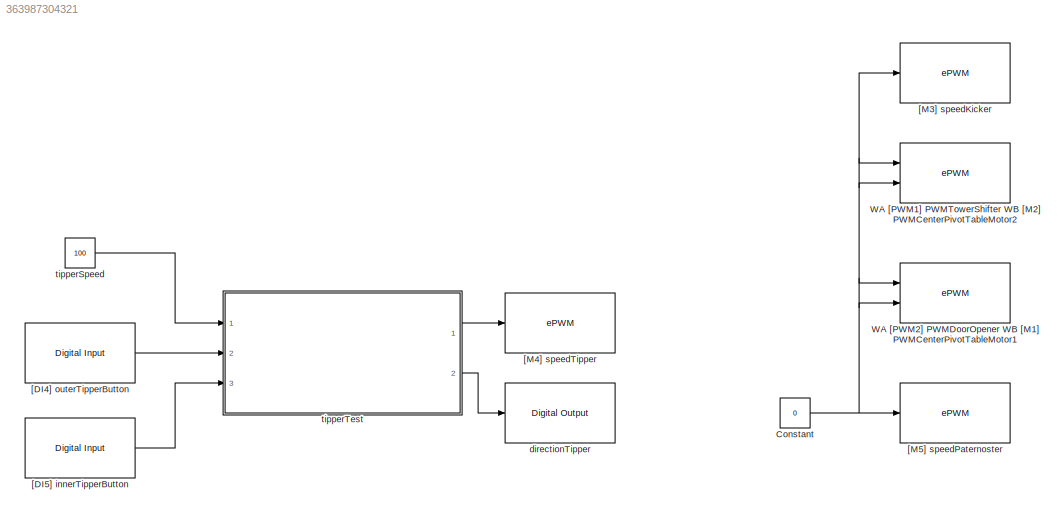
MODEL slx_363987304321
KIND model
BLOCK [Constant] Constant
  OutDataTypeStr = uint16
  Value = 0
BLOCK [Reference] WA [PWM1] PWMTowerShifter WB [M2] PWMCenterPivotTableMotor2  REF=c280xlib/ePWM
  CMPASource = Input port
  CMPAUnits = Percentages
  CMPAValue_clk = 32000
  CMPAValue_per = 0
  CMPBSource = Input port
  CMPBUnits = Percentages
  CMPBValue_clk = 32000
  CMPBValue_per = 0
  DBSource_ePWMxA = ePWMxA
  DBSource_ePWMxB = ePWMxA
  DBedgeDelay = Positive
  DBperiodSource = Specify via dialog
  DBpolarity = Active high (AH)
  FEDperiod = 0
  HRPWM_CTLMode = Phase control mode
  HRPWM_EDGMode = Both edge
  HRPWM_LoadMode = Counter equals to zero (CTR=ZERO)
  HSclockPrescale = 1
  Ports = [2]
  REDperiod = 0
  SourceBlock = c280xlib/ePWM
  SourceType = C280x/C2833x ePWM
  adcrequestEventA = First event
  adcrequestEventB = First event
  adcstartEventA = Counter equals to zero (CTR=Zero)
  adcstartEventB = Counter equals to zero (CTR=Zero)
  adcstartModuleA = off
  adcstartModuleB = off
  checkMode = off
  chopperDuty = 12.5%
  chopperEnable = off
  chopperFirstwidth = 1
  chopperFrequency = 1
  clockPrescale = 1
  countingMode = Up
  ePWMxACSFenable = off
  ePWMxACSFvalue = Forcing disable
  ePWMxALoadMode = Load on counter equals to zero (CTR=Zero)
  ePWMxASFreload = Zero
  ePWMxAStatus = on
  ePWMxAValue = 0
  ePWMxAactionLogic1 = Do nothing
  ePWMxAactionLogic2 = Set
  ePWMxAactionLogic3 = Do nothing
  ePWMxAactionLogic4 = Do nothing
  ePWMxAactionLogic5 = Clear
  ePWMxAactionLogic6 = Do nothing
  ePWMxAforced = No action
  ePWMxBCSFenable = off
  ePWMxBCSFvalue = Forcing disable
  ePWMxBLoadMode = Load on counter equals to zero (CTR=Zero)
  ePWMxBSFreload = Zero
  ePWMxBStatus = on
  ePWMxBValue = 0
  ePWMxBactionLogic1 = Do nothing
  ePWMxBactionLogic2 = Set
  ePWMxBactionLogic3 = Do nothing
  ePWMxBactionLogic4 = Do nothing
  ePWMxBactionLogic5 = Clear
  ePWMxBactionLogic6 = Do nothing
  ePWMxBforced = No action
  enCMPAshadow = Counter equals to zero
  enCMPBshadow = Counter equals to zero
  enHRPWM = off
  enSFO = on
  enTzCbcIntr = off
  enTzOstIntr = off
  enableDBePWMxA = off
  enableDBePWMxB = off
  intEn = off
  intPrd = First event
  intSel = Counter equals to zero (CTR=Zero)
  periodUnits = Clock cycles
  phaseActive = 0
  phaseActiveEnable = Disable
  phaseDirection = Count down after sync
  synchronizationEnable = off
  synchronizationOption = Disable
  tbshadow = Counter equals to zero
  timerPeriod = -1
  timerPeriod_clk = 64000
  timerPeriod_sec = 0.0001
  timerSource = Specify via dialog
  tripZoneoption = One-shot trip (OSHT)
  tripZonesource = Specify via dialog
  tzselCBC1 = off
  tzselCBC2 = off
  tzselCBC3 = off
  tzselCBC4 = off
  tzselCBC5 = off
  tzselCBC6 = off
  tzselOSHT1 = off
  tzselOSHT2 = off
  tzselOSHT3 = off
  tzselOSHT4 = off
  tzselOSHT5 = off
  tzselOSHT6 = off
  useModule = ePWM1
BLOCK [Reference] WA [PWM2] PWMDoorOpener WB [M1] PWMCenterPivotTableMotor1  REF=c280xlib/ePWM
  CMPASource = Input port
  CMPAUnits = Percentages
  CMPAValue_clk = 32000
  CMPAValue_per = 0
  CMPBSource = Input port
  CMPBUnits = Percentages
  CMPBValue_clk = 32000
  CMPBValue_per = 0
  DBSource_ePWMxA = ePWMxA
  DBSource_ePWMxB = ePWMxA
  DBedgeDelay = Positive
  DBperiodSource = Specify via dialog
  DBpolarity = Active high (AH)
  FEDperiod = 0
  HRPWM_CTLMode = Phase control mode
  HRPWM_EDGMode = Both edge
  HRPWM_LoadMode = Counter equals to zero (CTR=ZERO)
  HSclockPrescale = 1
  Ports = [2]
  REDperiod = 0
  SourceBlock = c280xlib/ePWM
  SourceType = C280x/C2833x ePWM
  adcrequestEventA = First event
  adcrequestEventB = First event
  adcstartEventA = Counter equals to zero (CTR=Zero)
  adcstartEventB = Counter equals to zero (CTR=Zero)
  adcstartModuleA = off
  adcstartModuleB = off
  checkMode = off
  chopperDuty = 12.5%
  chopperEnable = off
  chopperFirstwidth = 1
  chopperFrequency = 1
  clockPrescale = 1
  countingMode = Up
  ePWMxACSFenable = off
  ePWMxACSFvalue = Forcing disable
  ePWMxALoadMode = Load on counter equals to zero (CTR=Zero)
  ePWMxASFreload = Zero
  ePWMxAStatus = on
  ePWMxAValue = 0
  ePWMxAactionLogic1 = Do nothing
  ePWMxAactionLogic2 = Set
  ePWMxAactionLogic3 = Do nothing
  ePWMxAactionLogic4 = Do nothing
  ePWMxAactionLogic5 = Clear
  ePWMxAactionLogic6 = Do nothing
  ePWMxAforced = No action
  ePWMxBCSFenable = off
  ePWMxBCSFvalue = Forcing disable
  ePWMxBLoadMode = Load on counter equals to zero (CTR=Zero)
  ePWMxBSFreload = Zero
  ePWMxBStatus = on
  ePWMxBValue = 0
  ePWMxBactionLogic1 = Do nothing
  ePWMxBactionLogic2 = Set
  ePWMxBactionLogic3 = Do nothing
  ePWMxBactionLogic4 = Do nothing
  ePWMxBactionLogic5 = Clear
  ePWMxBactionLogic6 = Do nothing
  ePWMxBforced = No action
  enCMPAshadow = Counter equals to zero
  enCMPBshadow = Counter equals to zero
  enHRPWM = off
  enSFO = on
  enTzCbcIntr = off
  enTzOstIntr = off
  enableDBePWMxA = off
  enableDBePWMxB = off
  intEn = off
  intPrd = First event
  intSel = Counter equals to zero (CTR=Zero)
  periodUnits = Clock cycles
  phaseActive = 0
  phaseActiveEnable = Disable
  phaseDirection = Count down after sync
  synchronizationEnable = off
  synchronizationOption = Disable
  tbshadow = Counter equals to zero
  timerPeriod = -1
  timerPeriod_clk = 64000
  timerPeriod_sec = 0.0001
  timerSource = Specify via dialog
  tripZoneoption = One-shot trip (OSHT)
  tripZonesource = Specify via dialog
  tzselCBC1 = off
  tzselCBC2 = off
  tzselCBC3 = off
  tzselCBC4 = off
  tzselCBC5 = off
  tzselCBC6 = off
  tzselOSHT1 = off
  tzselOSHT2 = off
  tzselOSHT3 = off
  tzselOSHT4 = off
  tzselOSHT5 = off
  tzselOSHT6 = off
  useModule = ePWM2
BLOCK [Reference] [DI4] outerTipperButton  REF=c2833xlib/Digital Input
  GPIO_Bit0 = off
  GPIO_Bit0_Qualification = Sync to SYSCLKOUT
  GPIO_Bit1 = off
  GPIO_Bit1_Qualification = Sync to SYSCLKOUT
  GPIO_Bit2 = off
  GPIO_Bit2_Qualification = Sync to SYSCLKOUT
  GPIO_Bit3 = off
  GPIO_Bit3_Qualification = Sync to SYSCLKOUT
  GPIO_Bit4 = off
  GPIO_Bit4_Qualification = Sync to SYSCLKOUT
  GPIO_Bit5 = off
  GPIO_Bit5_Qualification = Sync to SYSCLKOUT
  GPIO_Bit6 = on
  GPIO_Bit6_Qualification = Sync to SYSCLKOUT
  GPIO_Bit7 = off
  GPIO_Bit7_Qualification = Sync to SYSCLKOUT
  GPIO_Number = GPIO24~GPIO31
  Ports = [0, 1]
  Qualification_Period = -1
  SourceBlock = c2833xlib/Digital Input
  SourceType = C2833x GPIO Digital Input
  UserDataPersistent = on
  dataType = boolean
  sampleTime = 0.001
BLOCK [Reference] [DI5] innerTipperButton  REF=c2833xlib/Digital Input
  GPIO_Bit0 = off
  GPIO_Bit0_Qualification = Sync to SYSCLKOUT
  GPIO_Bit1 = off
  GPIO_Bit1_Qualification = Sync to SYSCLKOUT
  GPIO_Bit2 = off
  GPIO_Bit2_Qualification = Sync to SYSCLKOUT
  GPIO_Bit3 = off
  GPIO_Bit3_Qualification = Sync to SYSCLKOUT
  GPIO_Bit4 = off
  GPIO_Bit4_Qualification = Sync to SYSCLKOUT
  GPIO_Bit5 = off
  GPIO_Bit5_Qualification = Sync to SYSCLKOUT
  GPIO_Bit6 = off
  GPIO_Bit6_Qualification = Sync to SYSCLKOUT
  GPIO_Bit7 = on
  GPIO_Bit7_Qualification = Sync to SYSCLKOUT
  GPIO_Number = GPIO24~GPIO31
  Ports = [0, 1]
  Qualification_Period = -1
  SourceBlock = c2833xlib/Digital Input
  SourceType = C2833x GPIO Digital Input
  UserDataPersistent = on
  dataType = boolean
  sampleTime = 0.001
BLOCK [Reference] [M3] speedKicker  REF=c280xlib/ePWM
  CMPASource = Specify via dialog
  CMPAUnits = Clock cycles
  CMPAValue_clk = 32000
  CMPAValue_per = 50
  CMPBSource = Input port
  CMPBUnits = Percentages
  CMPBValue_clk = 32000
  CMPBValue_per = 0
  DBSource_ePWMxA = ePWMxA
  DBSource_ePWMxB = ePWMxA
  DBedgeDelay = Positive
  DBperiodSource = Specify via dialog
  DBpolarity = Active high (AH)
  FEDperiod = 0
  HRPWM_CTLMode = Phase control mode
  HRPWM_EDGMode = Both edge
  HRPWM_LoadMode = Counter equals to zero (CTR=ZERO)
  HSclockPrescale = 1
  Ports = [1]
  REDperiod = 0
  SourceBlock = c280xlib/ePWM
  SourceType = C280x/C2833x ePWM
  adcrequestEventA = First event
  adcrequestEventB = First event
  adcstartEventA = Counter equals to zero (CTR=Zero)
  adcstartEventB = Counter equals to zero (CTR=Zero)
  adcstartModuleA = off
  adcstartModuleB = off
  checkMode = off
  chopperDuty = 12.5%
  chopperEnable = off
  chopperFirstwidth = 1
  chopperFrequency = 1
  clockPrescale = 1
  countingMode = Up
  ePWMxACSFenable = off
  ePWMxACSFvalue = Forcing disable
  ePWMxALoadMode = Load on counter equals to zero (CTR=Zero)
  ePWMxASFreload = Zero
  ePWMxAStatus = off
  ePWMxAValue = 0
  ePWMxAactionLogic1 = Do nothing
  ePWMxAactionLogic2 = Clear
  ePWMxAactionLogic3 = Set
  ePWMxAactionLogic4 = Do nothing
  ePWMxAactionLogic5 = Do nothing
  ePWMxAactionLogic6 = Do nothing
  ePWMxAforced = No action
  ePWMxBCSFenable = off
  ePWMxBCSFvalue = Forcing disable
  ePWMxBLoadMode = Load on counter equals to zero (CTR=Zero)
  ePWMxBSFreload = Zero
  ePWMxBStatus = on
  ePWMxBValue = 0
  ePWMxBactionLogic1 = Do nothing
  ePWMxBactionLogic2 = Set
  ePWMxBactionLogic3 = Do nothing
  ePWMxBactionLogic4 = Do nothing
  ePWMxBactionLogic5 = Clear
  ePWMxBactionLogic6 = Do nothing
  ePWMxBforced = No action
  enCMPAshadow = Counter equals to zero
  enCMPBshadow = Counter equals to zero
  enHRPWM = off
  enSFO = on
  enTzCbcIntr = off
  enTzOstIntr = off
  enableDBePWMxA = off
  enableDBePWMxB = off
  intEn = off
  intPrd = First event
  intSel = Counter equals to zero (CTR=Zero)
  periodUnits = Clock cycles
  phaseActive = 0
  phaseActiveEnable = Disable
  phaseDirection = Count down after sync
  synchronizationEnable = off
  synchronizationOption = Disable
  tbshadow = Counter equals to zero
  timerPeriod = -1
  timerPeriod_clk = 64000
  timerPeriod_sec = 0.0001
  timerSource = Specify via dialog
  tripZoneoption = One-shot trip (OSHT)
  tripZonesource = Specify via dialog
  tzselCBC1 = off
  tzselCBC2 = off
  tzselCBC3 = off
  tzselCBC4 = off
  tzselCBC5 = off
  tzselCBC6 = off
  tzselOSHT1 = off
  tzselOSHT2 = off
  tzselOSHT3 = off
  tzselOSHT4 = off
  tzselOSHT5 = off
  tzselOSHT6 = off
  useModule = ePWM6
BLOCK [Reference] [M4] speedTipper  REF=c280xlib/ePWM
  CMPASource = Specify via dialog
  CMPAUnits = Clock cycles
  CMPAValue_clk = 32000
  CMPAValue_per = 50
  CMPBSource = Input port
  CMPBUnits = Percentages
  CMPBValue_clk = 32000
  CMPBValue_per = 0
  DBSource_ePWMxA = ePWMxA
  DBSource_ePWMxB = ePWMxA
  DBedgeDelay = Positive
  DBperiodSource = Specify via dialog
  DBpolarity = Active high (AH)
  FEDperiod = 0
  HRPWM_CTLMode = Phase control mode
  HRPWM_EDGMode = Both edge
  HRPWM_LoadMode = Counter equals to zero (CTR=ZERO)
  HSclockPrescale = 1
  Ports = [1]
  REDperiod = 0
  SourceBlock = c280xlib/ePWM
  SourceType = C280x/C2833x ePWM
  adcrequestEventA = First event
  adcrequestEventB = First event
  adcstartEventA = Counter equals to zero (CTR=Zero)
  adcstartEventB = Counter equals to zero (CTR=Zero)
  adcstartModuleA = off
  adcstartModuleB = off
  checkMode = off
  chopperDuty = 12.5%
  chopperEnable = off
  chopperFirstwidth = 1
  chopperFrequency = 1
  clockPrescale = 1
  countingMode = Up
  ePWMxACSFenable = off
  ePWMxACSFvalue = Forcing disable
  ePWMxALoadMode = Load on counter equals to zero (CTR=Zero)
  ePWMxASFreload = Zero
  ePWMxAStatus = off
  ePWMxAValue = 0
  ePWMxAactionLogic1 = Do nothing
  ePWMxAactionLogic2 = Clear
  ePWMxAactionLogic3 = Set
  ePWMxAactionLogic4 = Do nothing
  ePWMxAactionLogic5 = Do nothing
  ePWMxAactionLogic6 = Do nothing
  ePWMxAforced = No action
  ePWMxBCSFenable = off
  ePWMxBCSFvalue = Forcing disable
  ePWMxBLoadMode = Load on counter equals to zero (CTR=Zero)
  ePWMxBSFreload = Zero
  ePWMxBStatus = on
  ePWMxBValue = 0
  ePWMxBactionLogic1 = Do nothing
  ePWMxBactionLogic2 = Set
  ePWMxBactionLogic3 = Do nothing
  ePWMxBactionLogic4 = Do nothing
  ePWMxBactionLogic5 = Clear
  ePWMxBactionLogic6 = Do nothing
  ePWMxBforced = No action
  enCMPAshadow = Counter equals to zero
  enCMPBshadow = Counter equals to zero
  enHRPWM = off
  enSFO = on
  enTzCbcIntr = off
  enTzOstIntr = off
  enableDBePWMxA = off
  enableDBePWMxB = off
  intEn = off
  intPrd = First event
  intSel = Counter equals to zero (CTR=Zero)
  periodUnits = Clock cycles
  phaseActive = 0
  phaseActiveEnable = Disable
  phaseDirection = Count down after sync
  synchronizationEnable = off
  synchronizationOption = Disable
  tbshadow = Counter equals to zero
  timerPeriod = -1
  timerPeriod_clk = 64000
  timerPeriod_sec = 0.0001
  timerSource = Specify via dialog
  tripZoneoption = One-shot trip (OSHT)
  tripZonesource = Specify via dialog
  tzselCBC1 = off
  tzselCBC2 = off
  tzselCBC3 = off
  tzselCBC4 = off
  tzselCBC5 = off
  tzselCBC6 = off
  tzselOSHT1 = off
  tzselOSHT2 = off
  tzselOSHT3 = off
  tzselOSHT4 = off
  tzselOSHT5 = off
  tzselOSHT6 = off
  useModule = ePWM5
BLOCK [Reference] [M5] speedPaternoster  REF=c280xlib/ePWM
  CMPASource = Specify via dialog
  CMPAUnits = Clock cycles
  CMPAValue_clk = 32000
  CMPAValue_per = 50
  CMPBSource = Input port
  CMPBUnits = Percentages
  CMPBValue_clk = 32000
  CMPBValue_per = 0
  DBSource_ePWMxA = ePWMxA
  DBSource_ePWMxB = ePWMxA
  DBedgeDelay = Positive
  DBperiodSource = Specify via dialog
  DBpolarity = Active high (AH)
  FEDperiod = 0
  HRPWM_CTLMode = Phase control mode
  HRPWM_EDGMode = Both edge
  HRPWM_LoadMode = Counter equals to zero (CTR=ZERO)
  HSclockPrescale = 1
  Ports = [1]
  REDperiod = 0
  SourceBlock = c280xlib/ePWM
  SourceType = C280x/C2833x ePWM
  adcrequestEventA = First event
  adcrequestEventB = First event
  adcstartEventA = Counter equals to zero (CTR=Zero)
  adcstartEventB = Counter equals to zero (CTR=Zero)
  adcstartModuleA = off
  adcstartModuleB = off
  checkMode = off
  chopperDuty = 12.5%
  chopperEnable = off
  chopperFirstwidth = 1
  chopperFrequency = 1
  clockPrescale = 1
  countingMode = Up
  ePWMxACSFenable = off
  ePWMxACSFvalue = Forcing disable
  ePWMxALoadMode = Load on counter equals to zero (CTR=Zero)
  ePWMxASFreload = Zero
  ePWMxAStatus = off
  ePWMxAValue = 0
  ePWMxAactionLogic1 = Do nothing
  ePWMxAactionLogic2 = Clear
  ePWMxAactionLogic3 = Set
  ePWMxAactionLogic4 = Do nothing
  ePWMxAactionLogic5 = Do nothing
  ePWMxAactionLogic6 = Do nothing
  ePWMxAforced = No action
  ePWMxBCSFenable = off
  ePWMxBCSFvalue = Forcing disable
  ePWMxBLoadMode = Load on counter equals to zero (CTR=Zero)
  ePWMxBSFreload = Zero
  ePWMxBStatus = on
  ePWMxBValue = 0
  ePWMxBactionLogic1 = Do nothing
  ePWMxBactionLogic2 = Set
  ePWMxBactionLogic3 = Do nothing
  ePWMxBactionLogic4 = Do nothing
  ePWMxBactionLogic5 = Clear
  ePWMxBactionLogic6 = Do nothing
  ePWMxBforced = No action
  enCMPAshadow = Counter equals to zero
  enCMPBshadow = Counter equals to zero
  enHRPWM = off
  enSFO = on
  enTzCbcIntr = off
  enTzOstIntr = off
  enableDBePWMxA = off
  enableDBePWMxB = off
  intEn = off
  intPrd = First event
  intSel = Counter equals to zero (CTR=Zero)
  periodUnits = Clock cycles
  phaseActive = 0
  phaseActiveEnable = Disable
  phaseDirection = Count down after sync
  synchronizationEnable = off
  synchronizationOption = Disable
  tbshadow = Counter equals to zero
  timerPeriod = -1
  timerPeriod_clk = 64000
  timerPeriod_sec = 0.0001
  timerSource = Specify via dialog
  tripZoneoption = One-shot trip (OSHT)
  tripZonesource = Specify via dialog
  tzselCBC1 = off
  tzselCBC2 = off
  tzselCBC3 = off
  tzselCBC4 = off
  tzselCBC5 = off
  tzselCBC6 = off
  tzselOSHT1 = off
  tzselOSHT2 = off
  tzselOSHT3 = off
  tzselOSHT4 = off
  tzselOSHT5 = off
  tzselOSHT6 = off
  useModule = ePWM4
BLOCK [Reference] directionTipper  REF=c2833xlib/Digital Output
  GPIO_BIT0_Toggle = off
  GPIO_BIT1_Toggle = off
  GPIO_BIT2_Toggle = off
  GPIO_BIT3_Toggle = off
  GPIO_BIT4_Toggle = off
  GPIO_BIT5_Toggle = off
  GPIO_BIT6_Toggle = off
  GPIO_BIT7_Toggle = off
  GPIO_Bit0 = off
  GPIO_Bit1 = off
  GPIO_Bit2 = off
  GPIO_Bit3 = off
  GPIO_Bit4 = off
  GPIO_Bit5 = off
  GPIO_Bit6 = off
  GPIO_Bit7 = on
  GPIO_Number = GPIO8~GPIO15
  Ports = [1]
  SourceBlock = c2833xlib/Digital Output
  SourceType = C2833x GPIO Digital Output
  UserDataPersistent = on
BLOCK [Constant] tipperSpeed
  OutDataTypeStr = uint16
  OutMax = 100
  OutMin = 0
  Value = 100
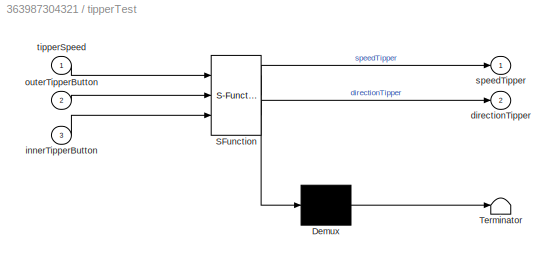
BLOCK [SubSystem] tipperTest
  ErrorFcn = Stateflow.Translate.translate
  PermitHierarchicalResolution = ExplicitOnly
  Ports = [3, 2]
  RequestExecContextInheritance = off
  SFBlockType = Chart
  TreatAsAtomicUnit = on
BLOCK [Demux] tipperTest/ Demux 
  Outputs = 1
  Ports = [1, 1]
BLOCK [S-Function] tipperTest/ SFunction 
  EnableBusSupport = on
  FunctionName = sf_sfun
  PortCounts = [3 3]
  Ports = [3, 3]
  Tag = Stateflow S-Function tipperTest_tIB 3
BLOCK [Terminator] tipperTest/ Terminator 
BLOCK [Outport] tipperTest/directionTipper
  IconDisplay = Port number
  Port = 2
BLOCK [Inport] tipperTest/innerTipperButton
  IconDisplay = Port number
  Port = 3
BLOCK [Inport] tipperTest/outerTipperButton
  IconDisplay = Port number
  Port = 2
BLOCK [Outport] tipperTest/speedTipper
  IconDisplay = Port number
BLOCK [Inport] tipperTest/tipperSpeed
  IconDisplay = Port number
NET Constant:1 -> WA [PWM1] PWMTowerShifter WB [M2] PWMCenterPivotTableMotor2:1, WA [PWM1] PWMTowerShifter WB [M2] PWMCenterPivotTableMotor2:2, WA [PWM2] PWMDoorOpener WB [M1] PWMCenterPivotTableMotor1:1, WA [PWM2] PWMDoorOpener WB [M1] PWMCenterPivotTableMotor1:2, [M3] speedKicker:1, [M5] speedPaternoster:1
LINE [DI4] outerTipperButton:1 -> tipperTest:2
LINE [DI5] innerTipperButton:1 -> tipperTest:3
LINE tipperSpeed:1 -> tipperTest:1
LINE tipperTest:1 -> [M4] speedTipper:1
LINE tipperTest:2 -> directionTipper:1
note: NET lines group one-source signal fan-out (src -> all destinations, sorted); 1:1 wires keep LINE
CHART tipperTest states=8 transitions=14
  STATE_LABEL 'tipperMovement'
  STATE_LABEL 'tipperPreparation\nentry: directionTipper = false;\n speedTipper = tipperSpeed;\n'
  STATE_LABEL 'tipperBlocked_errorRoutine'
  STATE_LABEL 'waitForResolvingOfBlockage\nentry: speedTipper = uint16(0);'
  STATE_LABEL 'removeTipperFromBlockage\nentry: directionTipper = false;\n speedTipper = tipperSpeed;'
  STATE_LABEL 'after(500,msec)'
  STATE_LABEL '[outerTipperButton == true]'
  STATE_LABEL 'tipperPush\nentry: directionTipper = true;'
  STATE_LABEL 'tipperRemove\nentry: directionTipper = false;'
  STATE_LABEL 'tipperIdle\nentry: speedTipper = uint16(0);'
  STATE_LABEL 'after(500,msec)'
  STATE_LABEL 'after(500,msec)'
  STATE_LABEL '[outerTipperButton == true]'
  STATE_LABEL 'after(700,msec)'
  STATE_LABEL '[innerTipperButton == true]'
  STATE_LABEL '[outerTipperButton == true]'
  STATE_LABEL 'after(400,msec)'
  STATE_LABEL 'tipperPreparation\nentry: directionTipper = false;\n speedTipper = tipperSpeed;\n'
  STATE_LABEL 'tipperBlocked_errorRoutine'
  STATE_LABEL 'waitForResolvingOfBlockage\nentry: speedTipper = uint16(0);'
  STATE_LABEL 'removeTipperFromBlockage\nentry: directionTipper = false;\n speedTipper = tipperSpeed;'
  STATE_LABEL 'after(500,msec)'
  STATE_LABEL '[outerTipperButton == true]'
  STATE_LABEL 'waitForResolvingOfBlockage\nentry: speedTipper = uint16(0);'
  STATE_LABEL 'removeTipperFromBlockage\nentry: directionTipper = false;\n speedTipper = tipperSpeed;'
  STATE_LABEL 'tipperPush\nentry: directionTipper = true;'
  STATE_LABEL 'tipperRemove\nentry: directionTipper = false;'
  STATE_LABEL 'tipperIdle\nentry: speedTipper = uint16(0);'
